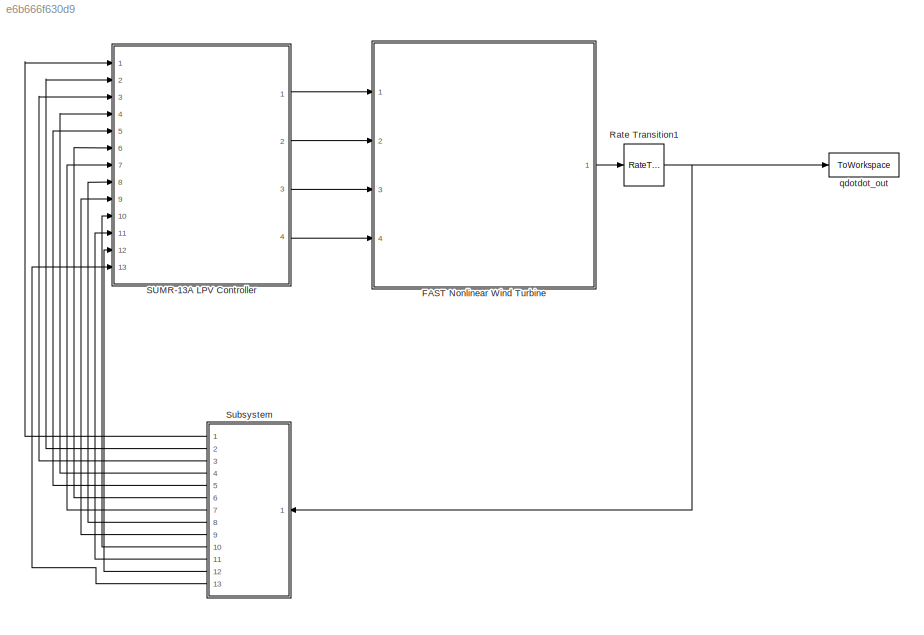
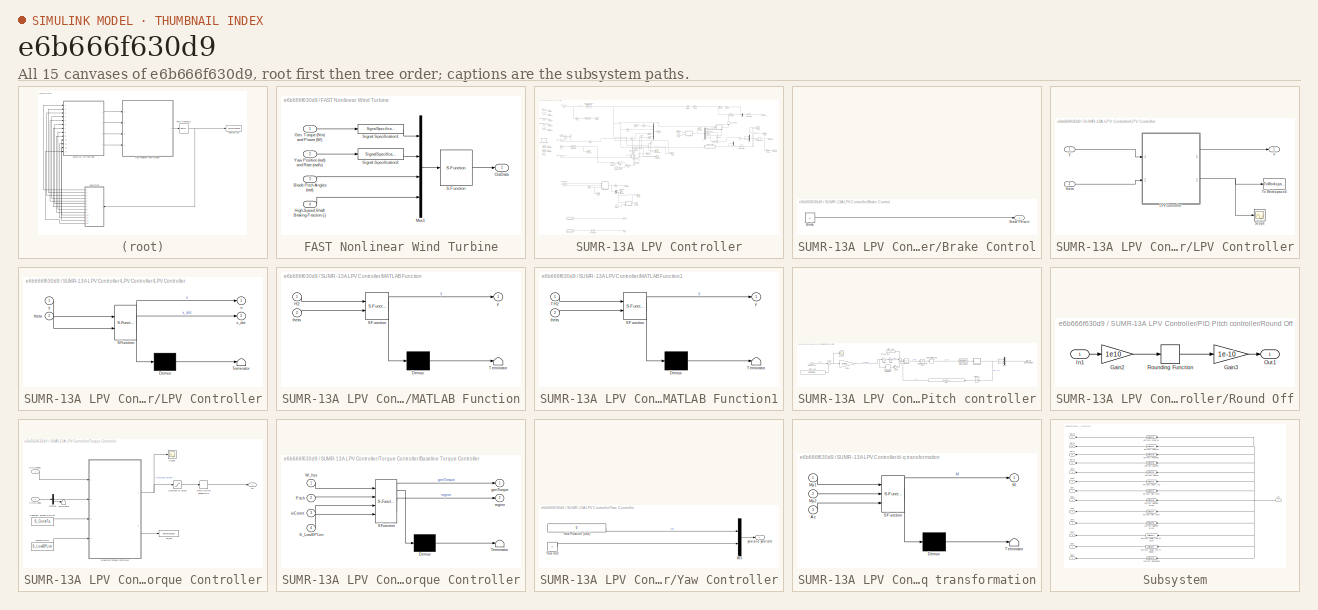
[diagram: thumbnail index - all 15 canvases of the model, root first then tree order]
MODEL slx_e6b666f630d9
KIND model
CONFIG AbsTol = auto
CONFIG EnableMultiTasking = on
CONFIG FixedStep = .0125
CONFIG MaxStep = auto
CONFIG MinStep = auto
CONFIG RelTol = 1e-3
CONFIG SampleTimeConstraint = Unconstrained
CONFIG Solver = ode4
CONFIG SolverName = ode4
CONFIG StartTime = 0.0
CONFIG StopTime = TMax
BLOCK [SubSystem] FAST Nonlinear Wind Turbine
  Ports = [4, 1]
  RequestExecContextInheritance = off
BLOCK [Inport] FAST Nonlinear Wind Turbine/Blade Pitch Angles (rad)
  IconDisplay = Port number
  Port = 3
BLOCK [Inport] FAST Nonlinear Wind Turbine/Gen. Torque (Nm) and Power (W)
  IconDisplay = Port number
BLOCK [Inport] FAST Nonlinear Wind Turbine/High-Speed Shaft Braking Fraction (-)
  IconDisplay = Port number
  Port = 4
BLOCK [Mux] FAST Nonlinear Wind Turbine/Mux1
  DisplayOption = bar
  Ports = [4, 1]
BLOCK [Outport] FAST Nonlinear Wind Turbine/OutData
  IconDisplay = Port number
BLOCK [S-Function] FAST Nonlinear Wind Turbine/S-Function
  EnableBusSupport = off
  FunctionName = FAST_SFunc
  Parameters = FAST_InputFileName, FA.TMax, 0
  Ports = [1, 1]
  SFcnIsStateOwnerBlock = off
  SFunctionDeploymentMode = off
BLOCK [SignalSpecification] FAST Nonlinear Wind Turbine/Signal Specification1
  Dimensions = 2
  OutDataTypeStr = double
  SignalType = real
BLOCK [SignalSpecification] FAST Nonlinear Wind Turbine/Signal Specification2
  Dimensions = 2
  OutDataTypeStr = double
  SignalType = real
BLOCK [Inport] FAST Nonlinear Wind Turbine/Yaw Position (rad) and Rate (rad//s)
  IconDisplay = Port number
  Port = 2
BLOCK [RateTransition] Rate Transition1
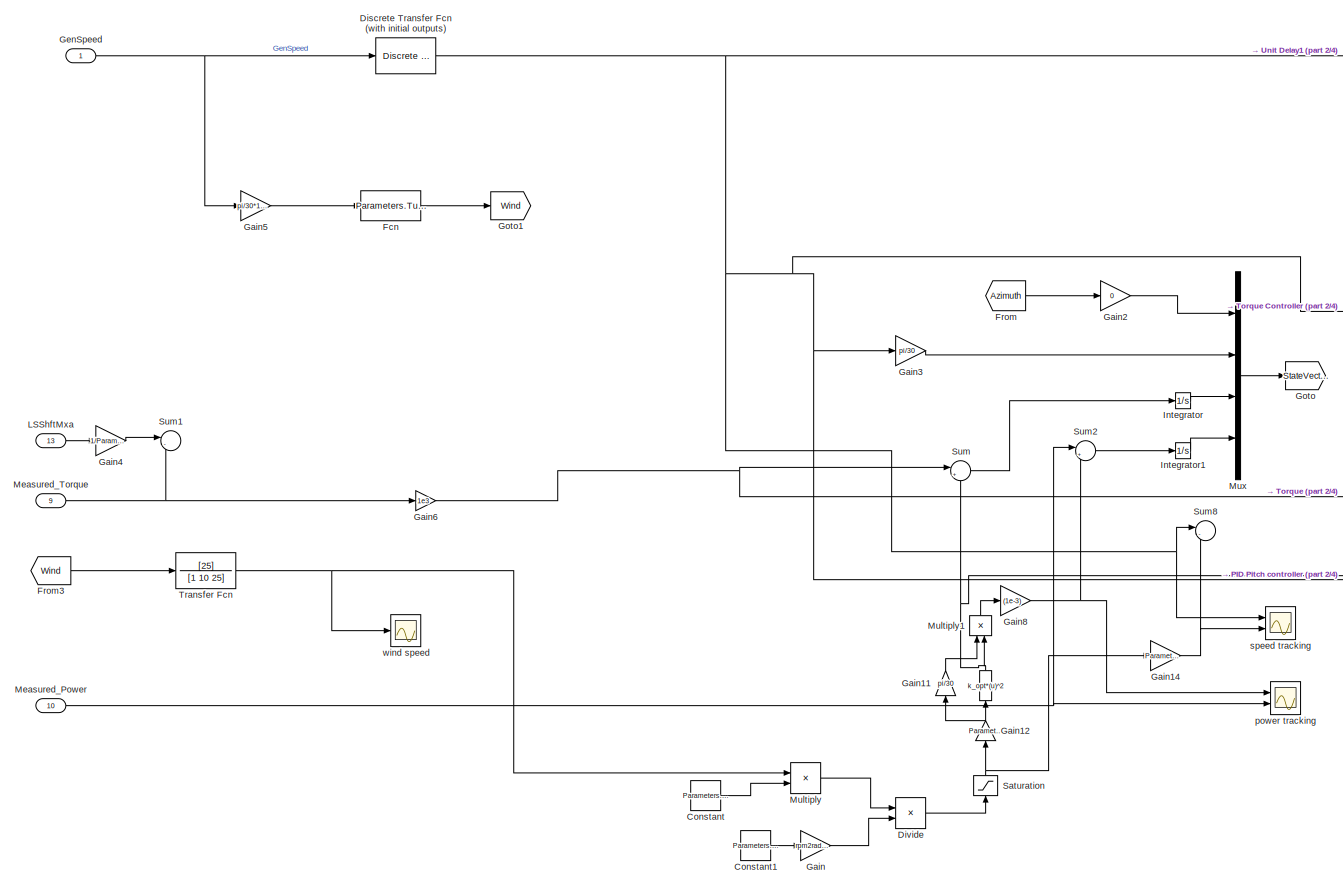
[diagram: SUMR-13A LPV Controller - part 1/4, top left region]
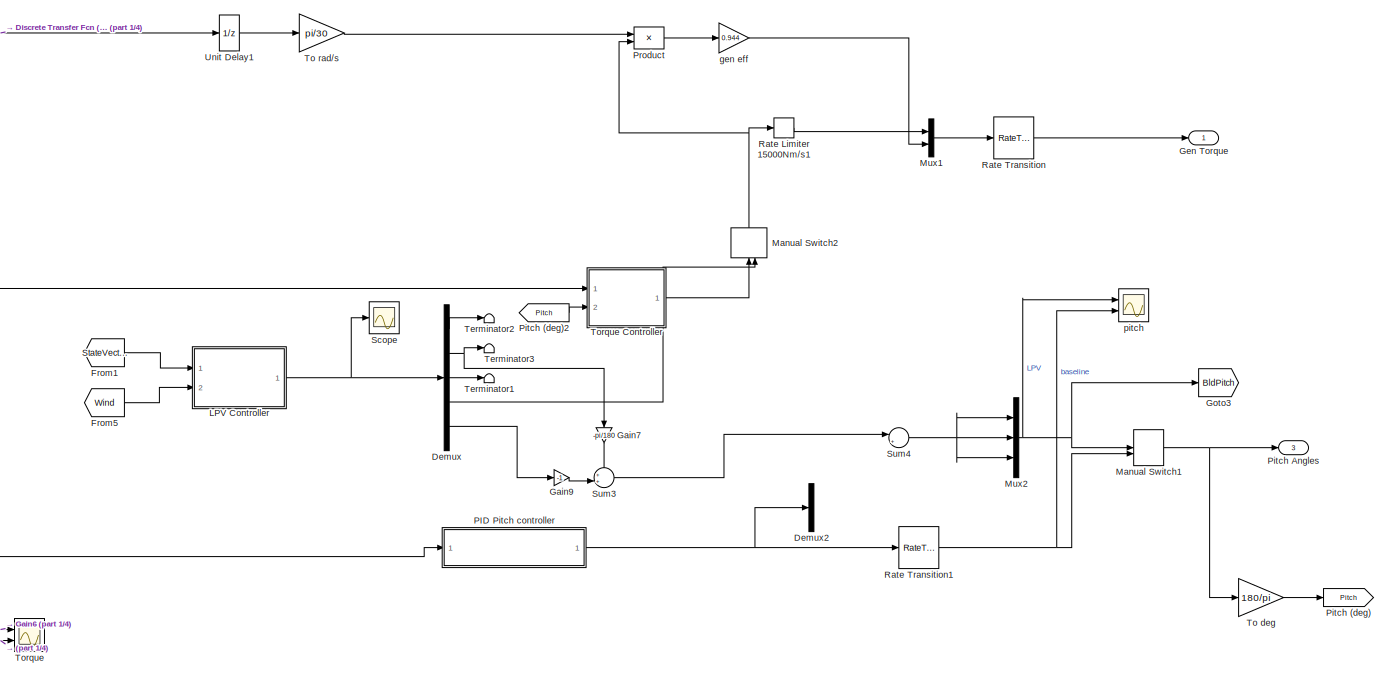
[diagram: SUMR-13A LPV Controller - part 2/4, top right region]
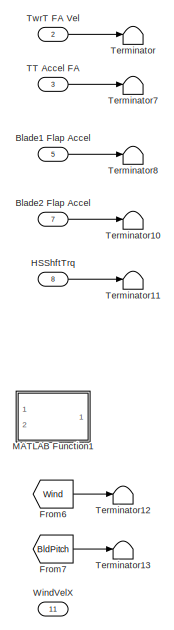
[diagram: SUMR-13A LPV Controller - part 3/4, top left region]
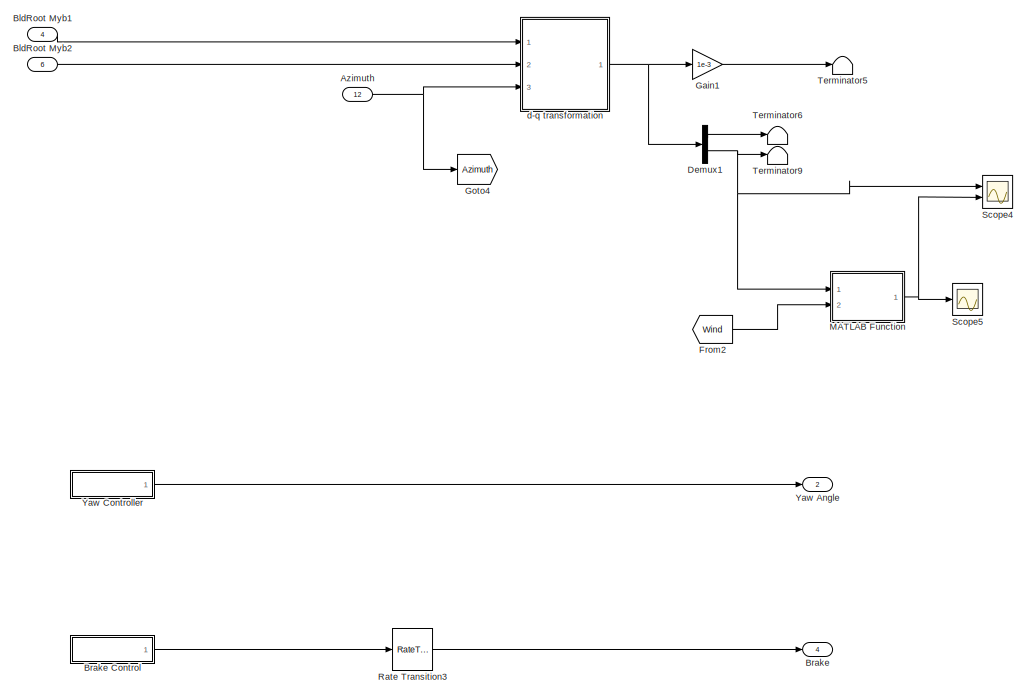
[diagram: SUMR-13A LPV Controller - part 4/4, bottom left region]
BLOCK [SubSystem] SUMR-13A LPV Controller
  Ports = [13, 4]
  RequestExecContextInheritance = off
BLOCK [Fcn] SUMR-13A LPV Controller/ 
  Expr = k_opt*(u)^2
BLOCK [Inport] SUMR-13A LPV Controller/Azimuth
  IconDisplay = Port number
  Port = 12
BLOCK [Inport] SUMR-13A LPV Controller/Blade1 Flap Accel
  IconDisplay = Port number
  Port = 5
BLOCK [Inport] SUMR-13A LPV Controller/Blade2 Flap Accel
  IconDisplay = Port number
  Port = 7
BLOCK [Inport] SUMR-13A LPV Controller/BldRoot Myb1
  IconDisplay = Port number
  Port = 4
BLOCK [Inport] SUMR-13A LPV Controller/BldRoot Myb2
  IconDisplay = Port number
  Port = 6
BLOCK [Outport] SUMR-13A LPV Controller/Brake
  IconDisplay = Port number
  Port = 4
BLOCK [SubSystem] SUMR-13A LPV Controller/Brake Control
  Ports = [0, 1]
  RequestExecContextInheritance = off
BLOCK [Constant] SUMR-13A LPV Controller/Brake Control/Brake
  SampleTime = -1
  Value = 0
BLOCK [Outport] SUMR-13A LPV Controller/Brake Control/Brake Percent
  IconDisplay = Port number
BLOCK [Constant] SUMR-13A LPV Controller/Constant
  SampleTime = FA.DT
  Value = Parameters.Turbine.la_max
BLOCK [Constant] SUMR-13A LPV Controller/Constant1
  Value = Parameters.Turbine.R+3
BLOCK [Demux] SUMR-13A LPV Controller/Demux
  DisplayOption = bar
  Outputs = 5
  Ports = [1, 5]
BLOCK [Demux] SUMR-13A LPV Controller/Demux1
  DisplayOption = bar
  Outputs = 2
  Ports = [1, 2]
BLOCK [Demux] SUMR-13A LPV Controller/Demux2
  DisplayOption = bar
  Outputs = 3
  Ports = [1, 3]
BLOCK [Reference] SUMR-13A LPV Controller/Discrete Transfer Fcn (with initial outputs)  REF=simulink_extras/Additional
Discrete/Discrete
Transfer Fcn
(with initial outputs)
  Ports = [1, 1]
  SourceBlock = simulink_extras/Additional\nDiscrete/Discrete\nTransfer Fcn\n(with initial outputs)
  SourceProductBaseCode = SL
  SourceProductName = Simulink
  SourceType = Discrete Transfer Function with Initial Outputs
BLOCK [Product] SUMR-13A LPV Controller/Divide
  InputSameDT = off
  Inputs = */
  OutDataTypeStr = Inherit: Inherit via internal rule
  Ports = [2, 1]
  RndMeth = Floor
  SaturateOnIntegerOverflow = off
BLOCK [Fcn] SUMR-13A LPV Controller/Fcn
  Expr = Parameters.Turbine.R*u(1)/Parameters.Turbine.la_max
BLOCK [From] SUMR-13A LPV Controller/From
  GotoTag = Azimuth
BLOCK [From] SUMR-13A LPV Controller/From1
  GotoTag = StateVector
BLOCK [From] SUMR-13A LPV Controller/From2
  GotoTag = Wind
BLOCK [From] SUMR-13A LPV Controller/From3
  GotoTag = Wind
BLOCK [From] SUMR-13A LPV Controller/From5
  GotoTag = Wind
BLOCK [From] SUMR-13A LPV Controller/From6
  GotoTag = Wind
BLOCK [From] SUMR-13A LPV Controller/From7
  GotoTag = BldPitch
BLOCK [Gain] SUMR-13A LPV Controller/Gain
  Gain = rpm2radps(1)
  OutDataTypeStr = Inherit: Inherit via internal rule
  ParamDataTypeStr = Inherit: Inherit via internal rule
  SaturateOnIntegerOverflow = off
BLOCK [Gain] SUMR-13A LPV Controller/Gain1
  Gain = 1e-3
  OutDataTypeStr = Inherit: Inherit via internal rule
  ParamDataTypeStr = Inherit: Inherit via internal rule
  SaturateOnIntegerOverflow = off
BLOCK [Gain] SUMR-13A LPV Controller/Gain11
  Gain = pi/30
  OutDataTypeStr = Inherit: Inherit via internal rule
  ParamDataTypeStr = Inherit: Inherit via internal rule
  SaturateOnIntegerOverflow = off
BLOCK [Gain] SUMR-13A LPV Controller/Gain12
  Gain = Parameters.Turbine.G
  OutDataTypeStr = Inherit: Inherit via internal rule
  ParamDataTypeStr = Inherit: Inherit via internal rule
  SaturateOnIntegerOverflow = off
BLOCK [Gain] SUMR-13A LPV Controller/Gain14
  Gain = Parameters.Turbine.G
  OutDataTypeStr = Inherit: Inherit via internal rule
  ParamDataTypeStr = Inherit: Inherit via internal rule
  SaturateOnIntegerOverflow = off
BLOCK [Gain] SUMR-13A LPV Controller/Gain2
  Gain = 0
  OutDataTypeStr = Inherit: Inherit via internal rule
  ParamDataTypeStr = Inherit: Inherit via internal rule
  SaturateOnIntegerOverflow = off
BLOCK [Gain] SUMR-13A LPV Controller/Gain3
  Gain = pi/30
  OutDataTypeStr = Inherit: Inherit via internal rule
  ParamDataTypeStr = Inherit: Inherit via internal rule
  SaturateOnIntegerOverflow = off
BLOCK [Gain] SUMR-13A LPV Controller/Gain4
  Gain = 1/Parameters.Turbine.G
  OutDataTypeStr = Inherit: Inherit via internal rule
  ParamDataTypeStr = Inherit: Inherit via internal rule
  SaturateOnIntegerOverflow = off
BLOCK [Gain] SUMR-13A LPV Controller/Gain5
  Gain = pi/30*1/Parameters.Turbine.G
  OutDataTypeStr = Inherit: Inherit via internal rule
  ParamDataTypeStr = Inherit: Inherit via internal rule
  SaturateOnIntegerOverflow = off
BLOCK [Gain] SUMR-13A LPV Controller/Gain6
  Gain = 1e3
  OutDataTypeStr = Inherit: Inherit via internal rule
  ParamDataTypeStr = Inherit: Inherit via internal rule
  SaturateOnIntegerOverflow = off
BLOCK [Gain] SUMR-13A LPV Controller/Gain7
  Gain = -pi/180
  OutDataTypeStr = Inherit: Inherit via internal rule
  ParamDataTypeStr = Inherit: Inherit via internal rule
  SaturateOnIntegerOverflow = off
BLOCK [Gain] SUMR-13A LPV Controller/Gain8
  Gain = (1e-3)
  OutDataTypeStr = Inherit: Inherit via internal rule
  ParamDataTypeStr = Inherit: Inherit via internal rule
  SaturateOnIntegerOverflow = off
BLOCK [Gain] SUMR-13A LPV Controller/Gain9
  Gain = -1
  OutDataTypeStr = Inherit: Inherit via internal rule
  ParamDataTypeStr = Inherit: Inherit via internal rule
  SaturateOnIntegerOverflow = off
BLOCK [Outport] SUMR-13A LPV Controller/Gen Torque
  IconDisplay = Port number
BLOCK [Inport] SUMR-13A LPV Controller/GenSpeed
  IconDisplay = Port number
BLOCK [Goto] SUMR-13A LPV Controller/Goto
  GotoTag = StateVector
BLOCK [Goto] SUMR-13A LPV Controller/Goto1
  GotoTag = Wind
BLOCK [Goto] SUMR-13A LPV Controller/Goto3
  GotoTag = BldPitch
BLOCK [Goto] SUMR-13A LPV Controller/Goto4
  GotoTag = Azimuth
BLOCK [Inport] SUMR-13A LPV Controller/HSShftTrq
  IconDisplay = Port number
  Port = 8
BLOCK [Integrator] SUMR-13A LPV Controller/Integrator
  Ports = [1, 1]
BLOCK [Integrator] SUMR-13A LPV Controller/Integrator1
  Ports = [1, 1]
BLOCK [SubSystem] SUMR-13A LPV Controller/LPV Controller
  MinAlgLoopOccurrences = on
  Ports = [2, 1]
  RequestExecContextInheritance = off
  TreatAsAtomicUnit = on
  TreatAsGroupedWhenPropagatingVariantConditions = off
BLOCK [SubSystem] SUMR-13A LPV Controller/LPV Controller/LPV Controller
  ErrorFcn = Stateflow.Translate.translate
  MinAlgLoopOccurrences = on
  PermitHierarchicalResolution = ExplicitOnly
  Ports = [2, 2]
  RequestExecContextInheritance = off
  SFBlockType = MATLAB Function
  SystemSampleTime = FA.DT
  TreatAsAtomicUnit = on
  TreatAsGroupedWhenPropagatingVariantConditions = off
BLOCK [Demux] SUMR-13A LPV Controller/LPV Controller/LPV Controller/ Demux 
  Outputs = 1
  Ports = [1, 1]
BLOCK [S-Function] SUMR-13A LPV Controller/LPV Controller/LPV Controller/ SFunction 
  EnableBusSupport = on
  FunctionName = sf_sfun
  PortCounts = [2 3]
  Ports = [2, 3]
  SFcnIsStateOwnerBlock = off
  SFunctionDeploymentMode = off
  Tag = Stateflow S-Function LPV_SUMR13 1
BLOCK [Terminator] SUMR-13A LPV Controller/LPV Controller/LPV Controller/ Terminator 
BLOCK [Inport] SUMR-13A LPV Controller/LPV Controller/LPV Controller/theta
  IconDisplay = Port number
  Port = 2
BLOCK [Outport] SUMR-13A LPV Controller/LPV Controller/LPV Controller/u
  IconDisplay = Port number
BLOCK [Outport] SUMR-13A LPV Controller/LPV Controller/LPV Controller/x_dot
  IconDisplay = Port number
  Port = 2
BLOCK [Inport] SUMR-13A LPV Controller/LPV Controller/LPV Controller/y
  IconDisplay = Port number
BLOCK [Scope] SUMR-13A LPV Controller/LPV Controller/Scope
  Floating = off
  NumInputPorts = 1
  Ports = [1]
  ScopeSpecificationString = Simulink.scopes.TimeScopeBlockCfg('CurrentConfiguration', extmgr.ConfigurationSet(extmgr.Configuration('Core','General UI',true),extmgr.Configuration('Core','Source UI',true),extmgr.Configuration('Sources','WiredSimulink',true,'DataLoggingVariableName','ScopeData1'),extmgr.Configuration('Visuals','Time Domain',true,'SerializedDisplays',{struct('MinYLimReal','-6191.96335','MaxYLimReal','10722.33325...<+1496ch>
BLOCK [ToWorkspace] SUMR-13A LPV Controller/LPV Controller/To Workspace4
  Decimation = 3
  FixptAsFi = on
  MaxDataPoints = inf
  Ports = [1]
  SampleTime = -1
  Save2DSignal = 3-D array (concatenate along third dimension)
  SaveFormat = Structure With Time
  VariableName = x_k1
BLOCK [Inport] SUMR-13A LPV Controller/LPV Controller/theta
  IconDisplay = Port number
  Port = 2
BLOCK [Outport] SUMR-13A LPV Controller/LPV Controller/u
  IconDisplay = Port number
BLOCK [Inport] SUMR-13A LPV Controller/LPV Controller/y
  IconDisplay = Port number
BLOCK [Inport] SUMR-13A LPV Controller/LSShftMxa
  IconDisplay = Port number
  Port = 13
BLOCK [SubSystem] SUMR-13A LPV Controller/MATLAB Function
  ErrorFcn = Stateflow.Translate.translate
  PermitHierarchicalResolution = ExplicitOnly
  Ports = [2, 1]
  RequestExecContextInheritance = off
  SFBlockType = MATLAB Function
  TreatAsAtomicUnit = on
BLOCK [Demux] SUMR-13A LPV Controller/MATLAB Function/ Demux 
  Outputs = 1
  Ports = [1, 1]
BLOCK [S-Function] SUMR-13A LPV Controller/MATLAB Function/ SFunction 
  EnableBusSupport = on
  FunctionName = sf_sfun
  PortCounts = [2 2]
  Ports = [2, 2]
  SFcnIsStateOwnerBlock = off
  SFunctionDeploymentMode = off
  Tag = Stateflow S-Function LPV_SUMR13 2
BLOCK [Terminator] SUMR-13A LPV Controller/MATLAB Function/ Terminator 
BLOCK [Inport] SUMR-13A LPV Controller/MATLAB Function/H2
  IconDisplay = Port number
BLOCK [Inport] SUMR-13A LPV Controller/MATLAB Function/theta
  IconDisplay = Port number
  Port = 2
BLOCK [Outport] SUMR-13A LPV Controller/MATLAB Function/y
  IconDisplay = Port number
BLOCK [SubSystem] SUMR-13A LPV Controller/MATLAB Function1
  ErrorFcn = Stateflow.Translate.translate
  PermitHierarchicalResolution = ExplicitOnly
  Ports = [2, 1]
  RequestExecContextInheritance = off
  SFBlockType = MATLAB Function
  TreatAsAtomicUnit = on
BLOCK [Demux] SUMR-13A LPV Controller/MATLAB Function1/ Demux 
  Outputs = 1
  Ports = [1, 1]
BLOCK [S-Function] SUMR-13A LPV Controller/MATLAB Function1/ SFunction 
  EnableBusSupport = on
  FunctionName = sf_sfun
  PortCounts = [2 2]
  Ports = [2, 2]
  SFcnIsStateOwnerBlock = off
  SFunctionDeploymentMode = off
  Tag = Stateflow S-Function LPV_SUMR13 4
BLOCK [Terminator] SUMR-13A LPV Controller/MATLAB Function1/ Terminator 
BLOCK [Inport] SUMR-13A LPV Controller/MATLAB Function1/TH2
  IconDisplay = Port number
BLOCK [Inport] SUMR-13A LPV Controller/MATLAB Function1/theta
  IconDisplay = Port number
  Port = 2
BLOCK [Outport] SUMR-13A LPV Controller/MATLAB Function1/y
  IconDisplay = Port number
BLOCK [ManualSwitch] SUMR-13A LPV Controller/Manual Switch1
BLOCK [ManualSwitch] SUMR-13A LPV Controller/Manual Switch2
  CurrentSetting = 0
BLOCK [Inport] SUMR-13A LPV Controller/Measured_Power
  IconDisplay = Port number
  Port = 10
BLOCK [Inport] SUMR-13A LPV Controller/Measured_Torque
  IconDisplay = Port number
  Port = 9
BLOCK [Product] SUMR-13A LPV Controller/Multiply
  InputSameDT = off
  OutDataTypeStr = Inherit: Inherit via internal rule
  Ports = [2, 1]
  RndMeth = Floor
  SaturateOnIntegerOverflow = off
BLOCK [Product] SUMR-13A LPV Controller/Multiply1
  InputSameDT = off
  OutDataTypeStr = Inherit: Inherit via internal rule
  Ports = [2, 1]
  RndMeth = Floor
  SaturateOnIntegerOverflow = off
BLOCK [Mux] SUMR-13A LPV Controller/Mux
  DisplayOption = bar
  Ports = [4, 1]
BLOCK [Mux] SUMR-13A LPV Controller/Mux1
  DisplayOption = bar
  Inputs = 2
  Ports = [2, 1]
BLOCK [Mux] SUMR-13A LPV Controller/Mux2
  DisplayOption = bar
  Inputs = 3
  Ports = [3, 1]
BLOCK [SubSystem] SUMR-13A LPV Controller/PID Pitch controller
  MinAlgLoopOccurrences = on
  Ports = [1, 1]
  RequestExecContextInheritance = off
BLOCK [Outport] SUMR-13A LPV Controller/PID Pitch controller/Blade Pitch (rad)
  IconDisplay = Port number
BLOCK [DiscreteIntegrator] SUMR-13A LPV Controller/PID Pitch controller/Discrete-Time Integrator
  ICPrevOutput = DiscIntNeverNeededParam
  ICPrevScaledInput = DiscIntNeverNeededParam
  InitialCondition = deg2rad(Parameters.Turbine.fine_pitch)/(PitchControlParams.Ki_0)/(1./(1.+deg2rad(Parameters.Turbine.fine_pitch)/PitchControlParams.theta_k))
  IntegratorMethod = Integration: Backward Euler
  LimitOutput = on
  LowerSaturationLimit = deg2rad(Parameters.Turbine.fine_pitch)/(PitchControlParams.Ki_0)/(1./(1.+deg2rad(Parameters.Turbine.fine_pitch)/PitchControlParams.theta_k))
  Ports = [1, 1]
  SampleTime = Control.DT
  UpperSaturationLimit = 5*1.570796/(PitchControlParams.Ki_0)/(1./(1.+1.570796/PitchControlParams.theta_k))
  gainval = 1
BLOCK [Fcn] SUMR-13A LPV Controller/PID Pitch controller/GK1
  Expr = 1./(1.+(u*180/pi-Parameters.Turbine.fine_pitch)/Parameters.Turbine.theta_k)
BLOCK [Gain] SUMR-13A LPV Controller/PID Pitch controller/Gain
  Gain = PitchControlParams.Kp_0
  OutDataTypeStr = Inherit: Inherit via internal rule
  ParamDataTypeStr = Inherit: Inherit via internal rule
  SaturateOnIntegerOverflow = off
BLOCK [Gain] SUMR-13A LPV Controller/PID Pitch controller/Gain1
  Gain = PitchControlParams.Ki_0
  OutDataTypeStr = Inherit: Inherit via internal rule
  ParamDataTypeStr = Inherit: Inherit via internal rule
  SaturateOnIntegerOverflow = off
BLOCK [Gain] SUMR-13A LPV Controller/PID Pitch controller/Gain2
  Gain = 0
  OutDataTypeStr = Inherit: Inherit via internal rule
  ParamDataTypeStr = Inherit: Inherit via internal rule
  SaturateOnIntegerOverflow = off
BLOCK [Gain] SUMR-13A LPV Controller/PID Pitch controller/Gain4
  Gain = rpm2radps(1)
  OutDataTypeStr = Inherit: Inherit via internal rule
  ParamDataTypeStr = Inherit: Inherit via internal rule
  SaturateOnIntegerOverflow = off
BLOCK [Mux] SUMR-13A LPV Controller/PID Pitch controller/Mux1
  DisplayOption = bar
  Inputs = 3
  Ports = [3, 1]
BLOCK [TransferFcn] SUMR-13A LPV Controller/PID Pitch controller/Pitch Actuator
  Denominator = Parameters.PitchActuator.TF_den
  Numerator = Parameters.PitchActuator.TF_num
BLOCK [Constant] SUMR-13A LPV Controller/PID Pitch controller/Pitch_op1
  SampleTime = Control.DT
  Value = 0
BLOCK [Constant] SUMR-13A LPV Controller/PID Pitch controller/Pitch_op2
  SampleTime = Control.DT
  Value = Parameters.Turbine.wg_rated
BLOCK [Product] SUMR-13A LPV Controller/PID Pitch controller/Product1
  InputSameDT = off
  OutDataTypeStr = Inherit: Inherit via internal rule
  Ports = [2, 1]
  SaturateOnIntegerOverflow = off
BLOCK [RateLimiter] SUMR-13A LPV Controller/PID Pitch controller/Rate Limiter 8deg//s
  FallingSlewLimit = -18*pi/180
  InitialCondition = deg2rad(0)
  RisingSlewLimit = 18*pi/180
  SampleTimeMode = inherited
BLOCK [Inport] SUMR-13A LPV Controller/PID Pitch controller/Rotor Speed
  IconDisplay = Port number
BLOCK [SubSystem] SUMR-13A LPV Controller/PID Pitch controller/Round Off
  Ports = [1, 1]
  RequestExecContextInheritance = off
BLOCK [Gain] SUMR-13A LPV Controller/PID Pitch controller/Round Off/Gain2
  Gain = 1e10
  OutDataTypeStr = Inherit: Inherit via internal rule
  ParamDataTypeStr = Inherit: Inherit via internal rule
  SaturateOnIntegerOverflow = off
BLOCK [Gain] SUMR-13A LPV Controller/PID Pitch controller/Round Off/Gain3
  Gain = 1e-10
  OutDataTypeStr = Inherit: Inherit via internal rule
  ParamDataTypeStr = Inherit: Inherit via internal rule
  SaturateOnIntegerOverflow = off
BLOCK [Inport] SUMR-13A LPV Controller/PID Pitch controller/Round Off/In1
  IconDisplay = Port number
BLOCK [Outport] SUMR-13A LPV Controller/PID Pitch controller/Round Off/Out1
  IconDisplay = Port number
BLOCK [Rounding] SUMR-13A LPV Controller/PID Pitch controller/Round Off/Rounding Function
  Operator = round
BLOCK [Saturate] SUMR-13A LPV Controller/PID Pitch controller/Saturation 0 to 90 deg
  InputPortMap = u0
  LowerLimit = deg2rad(Parameters.Turbine.fine_pitch)
  Ports = [1, 1]
  UpperLimit = 90*pi/180
BLOCK [Scope] SUMR-13A LPV Controller/PID Pitch controller/Scope1
  Floating = off
  NumInputPorts = 1
  Ports = [1]
  ScopeSpecificationString = Simulink.scopes.TimeScopeBlockCfg('CurrentConfiguration', extmgr.ConfigurationSet(extmgr.Configuration('Core','General UI',true),extmgr.Configuration('Core','Source UI',true),extmgr.Configuration('Sources','WiredSimulink',true,'DataLoggingVariableName','ScopeData2'),extmgr.Configuration('Visuals','Time Domain',true,'SerializedDisplays',{struct('MinYLimReal','-848.99604','MaxYLimReal','-522.22659',...<+1418ch>
BLOCK [Sum] SUMR-13A LPV Controller/PID Pitch controller/Sum1
  IconShape = round
  InputSameDT = off
  Inputs = +++
  OutDataTypeStr = Inherit: Inherit via internal rule
  Ports = [3, 1]
  SaturateOnIntegerOverflow = off
BLOCK [Sum] SUMR-13A LPV Controller/PID Pitch controller/Sum5
  IconShape = round
  Inputs = |+-
  Ports = [2, 1]
BLOCK [UnitDelay] SUMR-13A LPV Controller/PID Pitch controller/Unit Delay1
  InitialCondition = Parameters.Turbine.IC.Wg
  SampleTime = Control.DT
BLOCK [Goto] SUMR-13A LPV Controller/Pitch (deg)
  GotoTag = Pitch
BLOCK [From] SUMR-13A LPV Controller/Pitch (deg)2
  CloseFcn = tagdialog Close
  GotoTag = Pitch
BLOCK [Outport] SUMR-13A LPV Controller/Pitch Angles
  IconDisplay = Port number
  Port = 3
BLOCK [Product] SUMR-13A LPV Controller/Product
  InputSameDT = off
  OutDataTypeStr = Inherit: Inherit via internal rule
  Ports = [2, 1]
  SaturateOnIntegerOverflow = off
BLOCK [RateLimiter] SUMR-13A LPV Controller/Rate Limiter 15000Nm//s1
  FallingSlewLimit = -15000
  RisingSlewLimit = 15000
  SampleTimeMode = inherited
BLOCK [RateTransition] SUMR-13A LPV Controller/Rate Transition
  InitialCondition = Parameters.Turbine.IC.Tg
BLOCK [RateTransition] SUMR-13A LPV Controller/Rate Transition1
  InitialCondition = Parameters.Turbine.IC.Tg
BLOCK [RateTransition] SUMR-13A LPV Controller/Rate Transition3
BLOCK [Saturate] SUMR-13A LPV Controller/Saturation
  InputPortMap = u0
  LowerLimit = 0
  Ports = [1, 1]
  UpperLimit = Parameters.Turbine.wr_rated
BLOCK [Scope] SUMR-13A LPV Controller/Scope
  Floating = off
  NumInputPorts = 1
  Ports = [1]
  ScopeSpecificationString = Simulink.scopes.TimeScopeBlockCfg('CurrentConfiguration', extmgr.ConfigurationSet(extmgr.Configuration('Core','General UI',true),extmgr.Configuration('Core','Source UI',true),extmgr.Configuration('Sources','WiredSimulink',true,'DataLoggingVariableName','ScopeData1'),extmgr.Configuration('Visuals','Time Domain',true,'SerializedDisplays',{struct('MinYLimReal','-552.01323','MaxYLimReal','1618.73194',...<+1525ch>
BLOCK [Scope] SUMR-13A LPV Controller/Scope4
  Floating = off
  NumInputPorts = 2
  Ports = [2]
  ScopeSpecificationString = Simulink.scopes.TimeScopeBlockCfg('CurrentConfiguration', extmgr.ConfigurationSet(extmgr.Configuration('Core','General UI',true),extmgr.Configuration('Core','Source UI',true),extmgr.Configuration('Sources','WiredSimulink',true,'DataLoggingVariableName','ScopeData1'),extmgr.Configuration('Visuals','Time Domain',true,'SerializedDisplays',{struct('MinYLimReal','-108.10817','MaxYLimReal','139.93916','...<+1438ch>
BLOCK [Scope] SUMR-13A LPV Controller/Scope5
  Floating = off
  NumInputPorts = 1
  Ports = [1]
  ScopeSpecificationString = Simulink.scopes.TimeScopeBlockCfg('CurrentConfiguration', extmgr.ConfigurationSet(extmgr.Configuration('Core','General UI',true),extmgr.Configuration('Core','Source UI',true),extmgr.Configuration('Sources','WiredSimulink',true,'DataLoggingVariableName','ScopeData2'),extmgr.Configuration('Visuals','Time Domain',true,'SerializedDisplays',{struct('MinYLimReal','-105.59628','MaxYLimReal','117.33218','...<+1427ch>
BLOCK [Sum] SUMR-13A LPV Controller/Sum
  IconShape = round
  InputSameDT = off
  Inputs = |+-
  OutDataTypeStr = Inherit: Inherit via internal rule
  Ports = [2, 1]
  SaturateOnIntegerOverflow = off
BLOCK [Sum] SUMR-13A LPV Controller/Sum1
  IconShape = round
  InputSameDT = off
  Inputs = |-+
  OutDataTypeStr = Inherit: Inherit via internal rule
  Ports = [2, 1]
  SaturateOnIntegerOverflow = off
BLOCK [Sum] SUMR-13A LPV Controller/Sum2
  IconShape = round
  InputSameDT = off
  Inputs = |+-
  OutDataTypeStr = Inherit: Inherit via internal rule
  Ports = [2, 1]
  SaturateOnIntegerOverflow = off
BLOCK [Sum] SUMR-13A LPV Controller/Sum3
  IconShape = round
  InputSameDT = off
  Inputs = ++|
  OutDataTypeStr = Inherit: Inherit via internal rule
  Ports = [2, 1]
  SaturateOnIntegerOverflow = off
BLOCK [Sum] SUMR-13A LPV Controller/Sum4
  IconShape = round
  InputSameDT = off
  Inputs = |++
  OutDataTypeStr = Inherit: Inherit via internal rule
  Ports = [2, 1]
  SaturateOnIntegerOverflow = off
BLOCK [Sum] SUMR-13A LPV Controller/Sum8
  IconShape = round
  InputSameDT = off
  Inputs = |-+
  OutDataTypeStr = Inherit: Inherit via internal rule
  Ports = [2, 1]
  SaturateOnIntegerOverflow = off
BLOCK [Inport] SUMR-13A LPV Controller/TT Accel FA
  IconDisplay = Port number
  Port = 3
BLOCK [Terminator] SUMR-13A LPV Controller/Terminator
BLOCK [Terminator] SUMR-13A LPV Controller/Terminator1
BLOCK [Terminator] SUMR-13A LPV Controller/Terminator10
BLOCK [Terminator] SUMR-13A LPV Controller/Terminator11
BLOCK [Terminator] SUMR-13A LPV Controller/Terminator12
BLOCK [Terminator] SUMR-13A LPV Controller/Terminator13
BLOCK [Terminator] SUMR-13A LPV Controller/Terminator2
BLOCK [Terminator] SUMR-13A LPV Controller/Terminator3
BLOCK [Terminator] SUMR-13A LPV Controller/Terminator5
BLOCK [Terminator] SUMR-13A LPV Controller/Terminator6
BLOCK [Terminator] SUMR-13A LPV Controller/Terminator7
BLOCK [Terminator] SUMR-13A LPV Controller/Terminator8
BLOCK [Terminator] SUMR-13A LPV Controller/Terminator9
BLOCK [Gain] SUMR-13A LPV Controller/To deg
  Gain = 180/pi
  OutDataTypeStr = Inherit: Inherit via internal rule
  ParamDataTypeStr = Inherit: Inherit via internal rule
  SaturateOnIntegerOverflow = off
BLOCK [Gain] SUMR-13A LPV Controller/To rad//s
  Gain = pi/30
  OutDataTypeStr = Inherit: Inherit via internal rule
  ParamDataTypeStr = Inherit: Inherit via internal rule
  SaturateOnIntegerOverflow = off
BLOCK [Scope] SUMR-13A LPV Controller/Torque
  Floating = off
  NumInputPorts = 2
  Ports = [2]
  ScopeSpecificationString = Simulink.scopes.TimeScopeBlockCfg('CurrentConfiguration', extmgr.ConfigurationSet(extmgr.Configuration('Core','General UI',true),extmgr.Configuration('Core','Source UI',true),extmgr.Configuration('Sources','WiredSimulink',true,'DataLoggingVariableName','ScopeData1'),extmgr.Configuration('Visuals','Time Domain',true,'SerializedDisplays',{struct('MinYLimReal','-19677.42704','MaxYLimReal','177095.760...<+1439ch>
BLOCK [SubSystem] SUMR-13A LPV Controller/Torque Controller
  Ports = [2, 1]
  RequestExecContextInheritance = off
BLOCK [SubSystem] SUMR-13A LPV Controller/Torque Controller/Baseline Torque Controller
  ErrorFcn = Stateflow.Translate.translate
  PermitHierarchicalResolution = ExplicitOnly
  Ports = [4, 2]
  RequestExecContextInheritance = off
  SFBlockType = MATLAB Function
  TreatAsAtomicUnit = on
BLOCK [Demux] SUMR-13A LPV Controller/Torque Controller/Baseline Torque Controller/ Demux 
  Outputs = 1
  Ports = [1, 1]
BLOCK [S-Function] SUMR-13A LPV Controller/Torque Controller/Baseline Torque Controller/ SFunction 
  EnableBusSupport = on
  FunctionName = sf_sfun
  Parameters = TorqueControlParams
  PortCounts = [4 3]
  Ports = [4, 3]
  SFcnIsStateOwnerBlock = off
  SFunctionDeploymentMode = off
  Tag = Stateflow S-Function LPV_SUMR13 3
BLOCK [Terminator] SUMR-13A LPV Controller/Torque Controller/Baseline Torque Controller/ Terminator 
BLOCK [Inport] SUMR-13A LPV Controller/Torque Controller/Baseline Torque Controller/Pitch
  IconDisplay = Port number
  Port = 2
BLOCK [Inport] SUMR-13A LPV Controller/Torque Controller/Baseline Torque Controller/S_LowBPLim
  IconDisplay = Port number
  Port = 4
BLOCK [Inport] SUMR-13A LPV Controller/Torque Controller/Baseline Torque Controller/W_hss
  IconDisplay = Port number
BLOCK [Outport] SUMR-13A LPV Controller/Torque Controller/Baseline Torque Controller/genTorque
  IconDisplay = Port number
BLOCK [Inport] SUMR-13A LPV Controller/Torque Controller/Baseline Torque Controller/isConst
  IconDisplay = Port number
  Port = 3
BLOCK [Outport] SUMR-13A LPV Controller/Torque Controller/Baseline Torque Controller/region
  IconDisplay = Port number
  Port = 2
BLOCK [Constant] SUMR-13A LPV Controller/Torque Controller/Constant Torque Switch
  SampleTime = Control.DT
  Value = S_ConstTq
BLOCK [Demux] SUMR-13A LPV Controller/Torque Controller/Demux
  DisplayOption = bar
  Outputs = [1, 2]
  Ports = [1, 2]
BLOCK [Inport] SUMR-13A LPV Controller/Torque Controller/HSSspeed
  IconDisplay = Port number
BLOCK [Constant] SUMR-13A LPV Controller/Torque Controller/LowBPLim1
  SampleTime = Control.DT
  Value = S_LowBPLim
BLOCK [Inport] SUMR-13A LPV Controller/Torque Controller/Pitch (deg)
  IconDisplay = Port number
  Port = 2
BLOCK [RateLimiter] SUMR-13A LPV Controller/Torque Controller/Rate Limiter 15000Nm//s
  FallingSlewLimit = -15000
  RisingSlewLimit = 15000
  SampleTimeMode = inherited
BLOCK [Saturate] SUMR-13A LPV Controller/Torque Controller/Saturate to Tg_op
  InputPortMap = u0
  LowerLimit = 0
  Ports = [1, 1]
  UpperLimit = TorqueControlParams.T_rated
BLOCK [Scope] SUMR-13A LPV Controller/Torque Controller/Scope
  Floating = off
  NumInputPorts = 1
  Ports = [1]
  ScopeSpecificationString = C++SS(StrPVP('SaveName','ScopeData1'),StrPVP('LimitDataPoints','on'),StrPVP('DataFormat','Array'),StrPVP('Decimation','1'),StrPVP('BlockParamSampleInput','off'))
BLOCK [Terminator] SUMR-13A LPV Controller/Torque Controller/Terminator
BLOCK [Outport] SUMR-13A LPV Controller/Torque Controller/Tg
  IconDisplay = Port number
BLOCK [ToWorkspace] SUMR-13A LPV Controller/Torque Controller/Tg_out
  MaxDataPoints = Inf
  Ports = [1]
  SampleTime = -1
  VariableName = Out_Region1
BLOCK [TransferFcn] SUMR-13A LPV Controller/Transfer Fcn
  Denominator = [1 10 25]
  Numerator = [25]
BLOCK [Inport] SUMR-13A LPV Controller/TwrT FA Vel
  IconDisplay = Port number
  Port = 2
BLOCK [UnitDelay] SUMR-13A LPV Controller/Unit Delay1
  InitialCondition = Parameters.Turbine.IC.Wg
  SampleTime = FA.DT
BLOCK [Inport] SUMR-13A LPV Controller/WindVelX
  IconDisplay = Port number
  Port = 11
BLOCK [Outport] SUMR-13A LPV Controller/Yaw Angle
  IconDisplay = Port number
  Port = 2
BLOCK [SubSystem] SUMR-13A LPV Controller/Yaw Controller
  Ports = [0, 1]
  RequestExecContextInheritance = off
BLOCK [Mux] SUMR-13A LPV Controller/Yaw Controller/Mux
  DisplayOption = bar
  Inputs = 2
  Ports = [2, 1]
BLOCK [Constant] SUMR-13A LPV Controller/Yaw Controller/Yaw Position (rad)
  SampleTime = -1
  Value = 0
BLOCK [Constant] SUMR-13A LPV Controller/Yaw Controller/Yaw rate
  SampleTime = -1
  Value = 0
BLOCK [Outport] SUMR-13A LPV Controller/Yaw Controller/yaw and yaw rate
  IconDisplay = Port number
BLOCK [SubSystem] SUMR-13A LPV Controller/d-q transformation
  ErrorFcn = Stateflow.Translate.translate
  PermitHierarchicalResolution = ExplicitOnly
  Ports = [3, 1]
  RequestExecContextInheritance = off
  SFBlockType = MATLAB Function
  TreatAsAtomicUnit = on
BLOCK [Demux] SUMR-13A LPV Controller/d-q transformation/ Demux 
  Outputs = 1
  Ports = [1, 1]
BLOCK [S-Function] SUMR-13A LPV Controller/d-q transformation/ SFunction 
  EnableBusSupport = on
  FunctionName = sf_sfun
  PortCounts = [3 2]
  Ports = [3, 2]
  SFcnIsStateOwnerBlock = off
  SFunctionDeploymentMode = off
  Tag = Stateflow S-Function LPV_SUMR13 5
BLOCK [Terminator] SUMR-13A LPV Controller/d-q transformation/ Terminator 
BLOCK [Inport] SUMR-13A LPV Controller/d-q transformation/Az
  IconDisplay = Port number
  Port = 3
BLOCK [Outport] SUMR-13A LPV Controller/d-q transformation/M
  IconDisplay = Port number
BLOCK [Inport] SUMR-13A LPV Controller/d-q transformation/My1
  IconDisplay = Port number
BLOCK [Inport] SUMR-13A LPV Controller/d-q transformation/My2
  IconDisplay = Port number
  Port = 2
BLOCK [Gain] SUMR-13A LPV Controller/gen eff
  Gain = 0.944
  OutDataTypeStr = Inherit: Inherit via internal rule
  ParamDataTypeStr = Inherit: Inherit via internal rule
  SaturateOnIntegerOverflow = off
BLOCK [Scope] SUMR-13A LPV Controller/pitch
  Floating = off
  NumInputPorts = 2
  Ports = [2]
  ScopeSpecificationString = Simulink.scopes.TimeScopeBlockCfg('CurrentConfiguration', extmgr.ConfigurationSet(extmgr.Configuration('Core','General UI',true),extmgr.Configuration('Core','Source UI',true),extmgr.Configuration('Sources','WiredSimulink',true,'DataLoggingVariableName','ScopeData2'),extmgr.Configuration('Visuals','Time Domain',true,'SerializedDisplays',{struct('MinYLimReal','-0.16596','MaxYLimReal','1.49361','YLab...<+1475ch>
BLOCK [Scope] SUMR-13A LPV Controller/power tracking
  Floating = off
  NumInputPorts = 2
  Ports = [2]
  ScopeSpecificationString = Simulink.scopes.TimeScopeBlockCfg('CurrentConfiguration', extmgr.ConfigurationSet(extmgr.Configuration('Core','General UI',true),extmgr.Configuration('Core','Source UI',true),extmgr.Configuration('Sources','WiredSimulink',true,'DataLoggingVariableName','ScopeData1'),extmgr.Configuration('Visuals','Time Domain',true,'SerializedDisplays',{struct('MinYLimReal','-16669.36011','MaxYLimReal','47266.9558...<+1467ch>
BLOCK [Scope] SUMR-13A LPV Controller/speed tracking
  Floating = off
  NumInputPorts = 2
  Ports = [2]
  ScopeSpecificationString = Simulink.scopes.TimeScopeBlockCfg('CurrentConfiguration', extmgr.ConfigurationSet(extmgr.Configuration('Core','General UI',true),extmgr.Configuration('Core','Source UI',true),extmgr.Configuration('Sources','WiredSimulink',true,'DataLoggingVariableName','ScopeData1'),extmgr.Configuration('Visuals','Time Domain',true,'SerializedDisplays',{struct('MinYLimReal','-291.75372','MaxYLimReal','2625.78346',...<+1486ch>
BLOCK [Scope] SUMR-13A LPV Controller/wind speed
  Floating = off
  NumInputPorts = 1
  Ports = [1]
  ScopeSpecificationString = Simulink.scopes.TimeScopeBlockCfg('CurrentConfiguration', extmgr.ConfigurationSet(extmgr.Configuration('Core','General UI',true),extmgr.Configuration('Core','Source UI',true),extmgr.Configuration('Sources','WiredSimulink',true,'DataLoggingVariableName','ScopeData5'),extmgr.Configuration('Visuals','Time Domain',true,'SerializedDisplays',{struct('MinYLimReal','-0.85021','MaxYLimReal','7.65188','YLab...<+1410ch>
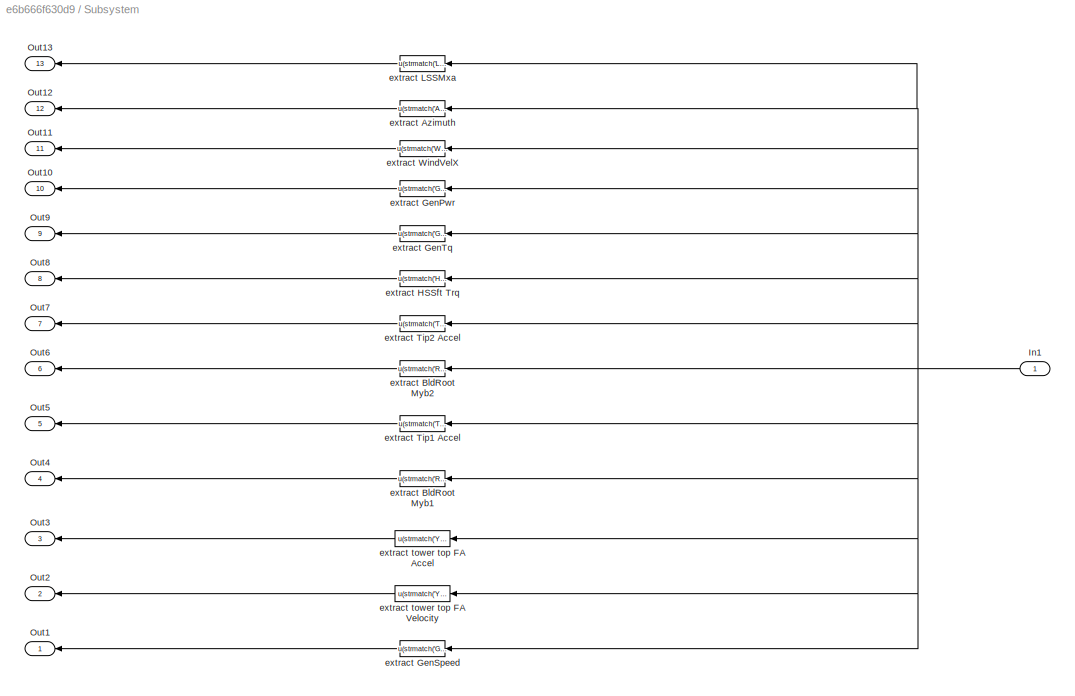
BLOCK [SubSystem] Subsystem
  Ports = [1, 13]
  RequestExecContextInheritance = off
BLOCK [Inport] Subsystem/In1
  IconDisplay = Port number
BLOCK [Outport] Subsystem/Out1
  IconDisplay = Port number
BLOCK [Outport] Subsystem/Out10
  IconDisplay = Port number
  Port = 10
BLOCK [Outport] Subsystem/Out11
  IconDisplay = Port number
  Port = 11
BLOCK [Outport] Subsystem/Out12
  IconDisplay = Port number
  Port = 12
BLOCK [Outport] Subsystem/Out13
  IconDisplay = Port number
  Port = 13
BLOCK [Outport] Subsystem/Out2
  IconDisplay = Port number
  Port = 2
BLOCK [Outport] Subsystem/Out3
  IconDisplay = Port number
  Port = 3
BLOCK [Outport] Subsystem/Out4
  IconDisplay = Port number
  Port = 4
BLOCK [Outport] Subsystem/Out5
  IconDisplay = Port number
  Port = 5
BLOCK [Outport] Subsystem/Out6
  IconDisplay = Port number
  Port = 6
BLOCK [Outport] Subsystem/Out7
  IconDisplay = Port number
  Port = 7
BLOCK [Outport] Subsystem/Out8
  IconDisplay = Port number
  Port = 8
BLOCK [Outport] Subsystem/Out9
  IconDisplay = Port number
  Port = 9
BLOCK [Fcn] Subsystem/extract Azimuth
  Expr = u(strmatch('Azimuth',OutList))
BLOCK [Fcn] Subsystem/extract BldRoot Myb1
  Expr = u(strmatch('RootMyb1',OutList))
BLOCK [Fcn] Subsystem/extract BldRoot Myb2
  Expr = u(strmatch('RootMyb2',OutList))
BLOCK [Fcn] Subsystem/extract GenPwr
  Expr = u(strmatch('GenPwr',OutList))
BLOCK [Fcn] Subsystem/extract GenSpeed
  Expr = u(strmatch('GenSpeed',OutList))
BLOCK [Fcn] Subsystem/extract GenTq
  Expr = u(strmatch('GenTq',OutList))
BLOCK [Fcn] Subsystem/extract HSSft Trq
  Expr = u(strmatch('HSShftTq',OutList))
BLOCK [Fcn] Subsystem/extract LSSMxa
  Expr = u(strmatch('LSShftMxa',OutList))
BLOCK [Fcn] Subsystem/extract Tip1 Accel
  Expr = u(strmatch('TipALxb1',OutList))
BLOCK [Fcn] Subsystem/extract Tip2 Accel
  Expr = u(strmatch('TipALxb1',OutList))
BLOCK [Fcn] Subsystem/extract WindVelX
  Expr = u(strmatch('Wind1VelX',OutList))
BLOCK [Fcn] Subsystem/extract tower top FA Accel
  Expr = u(strmatch('YawBrRAyp',OutList))
BLOCK [Fcn] Subsystem/extract tower top FA Velocity
  Expr = u(strmatch('YawBrRVyp',OutList))
BLOCK [ToWorkspace] qdotdot_out
  MaxDataPoints = inf
  Ports = [1]
  SampleTime = -1
  SaveFormat = Structure With Time
  VariableName = OutData
ANNOTATION SUMR-13A LPV Controller/PID Pitch controller: fine pitch offset?
LINE FAST Nonlinear Wind Turbine/Blade Pitch Angles (rad):1 -> FAST Nonlinear Wind Turbine/Mux1:3
LINE FAST Nonlinear Wind Turbine/Gen. Torque (Nm) and Power (W):1 -> FAST Nonlinear Wind Turbine/Signal Specification1:1
LINE FAST Nonlinear Wind Turbine/High-Speed Shaft Braking Fraction (-):1 -> FAST Nonlinear Wind Turbine/Mux1:4
LINE FAST Nonlinear Wind Turbine/Mux1:1 -> FAST Nonlinear Wind Turbine/S-Function:1
LINE FAST Nonlinear Wind Turbine/S-Function:1 -> FAST Nonlinear Wind Turbine/OutData:1
LINE FAST Nonlinear Wind Turbine/Signal Specification1:1 -> FAST Nonlinear Wind Turbine/Mux1:1
LINE FAST Nonlinear Wind Turbine/Signal Specification2:1 -> FAST Nonlinear Wind Turbine/Mux1:2
LINE FAST Nonlinear Wind Turbine/Yaw Position (rad) and Rate (rad//s):1 -> FAST Nonlinear Wind Turbine/Signal Specification2:1
LINE FAST Nonlinear Wind Turbine:1 -> Rate Transition1:1
NET Rate Transition1:1 -> Subsystem:1, qdotdot_out:1
NET SUMR-13A LPV Controller/ :1 -> SUMR-13A LPV Controller/Multiply1:2, SUMR-13A LPV Controller/Sum:2, SUMR-13A LPV Controller/Torque:2
NET SUMR-13A LPV Controller/Azimuth:1 -> SUMR-13A LPV Controller/Goto4:1, SUMR-13A LPV Controller/d-q transformation:3
LINE SUMR-13A LPV Controller/Blade1 Flap Accel:1 -> SUMR-13A LPV Controller/Terminator8:1
LINE SUMR-13A LPV Controller/Blade2 Flap Accel:1 -> SUMR-13A LPV Controller/Terminator10:1
LINE SUMR-13A LPV Controller/BldRoot Myb1:1 -> SUMR-13A LPV Controller/d-q transformation:1
LINE SUMR-13A LPV Controller/BldRoot Myb2:1 -> SUMR-13A LPV Controller/d-q transformation:2
LINE SUMR-13A LPV Controller/Brake Control/Brake:1 -> SUMR-13A LPV Controller/Brake Control/Brake Percent:1
LINE SUMR-13A LPV Controller/Brake Control:1 -> SUMR-13A LPV Controller/Rate Transition3:1
LINE SUMR-13A LPV Controller/Constant1:1 -> SUMR-13A LPV Controller/Gain:1
LINE SUMR-13A LPV Controller/Constant:1 -> SUMR-13A LPV Controller/Multiply:2
LINE SUMR-13A LPV Controller/Demux1:1 -> SUMR-13A LPV Controller/Terminator6:1
NET SUMR-13A LPV Controller/Demux1:2 -> SUMR-13A LPV Controller/MATLAB Function:1, SUMR-13A LPV Controller/Scope4:1, SUMR-13A LPV Controller/Terminator9:1
LINE SUMR-13A LPV Controller/Demux:1 -> SUMR-13A LPV Controller/Terminator2:1
NET SUMR-13A LPV Controller/Demux:2 -> SUMR-13A LPV Controller/Gain7:1, SUMR-13A LPV Controller/Terminator3:1
LINE SUMR-13A LPV Controller/Demux:3 -> SUMR-13A LPV Controller/Terminator1:1
LINE SUMR-13A LPV Controller/Demux:4 -> SUMR-13A LPV Controller/Manual Switch2:2
LINE SUMR-13A LPV Controller/Demux:5 -> SUMR-13A LPV Controller/Gain9:1
NET SUMR-13A LPV Controller/Discrete Transfer Fcn (with initial outputs):1 -> SUMR-13A LPV Controller/Gain3:1, SUMR-13A LPV Controller/PID Pitch controller:1, SUMR-13A LPV Controller/Sum8:1, SUMR-13A LPV Controller/Torque Controller:1, SUMR-13A LPV Controller/Unit Delay1:1, SUMR-13A LPV Controller/speed tracking:1
LINE SUMR-13A LPV Controller/Divide:1 -> SUMR-13A LPV Controller/Saturation:1
LINE SUMR-13A LPV Controller/Fcn:1 -> SUMR-13A LPV Controller/Goto1:1
LINE SUMR-13A LPV Controller/From1:1 -> SUMR-13A LPV Controller/LPV Controller:1
LINE SUMR-13A LPV Controller/From2:1 -> SUMR-13A LPV Controller/MATLAB Function:2
LINE SUMR-13A LPV Controller/From3:1 -> SUMR-13A LPV Controller/Transfer Fcn:1
LINE SUMR-13A LPV Controller/From5:1 -> SUMR-13A LPV Controller/LPV Controller:2
LINE SUMR-13A LPV Controller/From6:1 -> SUMR-13A LPV Controller/Terminator12:1
LINE SUMR-13A LPV Controller/From7:1 -> SUMR-13A LPV Controller/Terminator13:1
LINE SUMR-13A LPV Controller/From:1 -> SUMR-13A LPV Controller/Gain2:1
LINE SUMR-13A LPV Controller/Gain11:1 -> SUMR-13A LPV Controller/Multiply1:1
NET SUMR-13A LPV Controller/Gain12:1 -> SUMR-13A LPV Controller/ :1, SUMR-13A LPV Controller/Gain11:1
NET SUMR-13A LPV Controller/Gain14:1 -> SUMR-13A LPV Controller/Sum8:2, SUMR-13A LPV Controller/speed tracking:2
LINE SUMR-13A LPV Controller/Gain1:1 -> SUMR-13A LPV Controller/Terminator5:1
LINE SUMR-13A LPV Controller/Gain2:1 -> SUMR-13A LPV Controller/Mux:1
LINE SUMR-13A LPV Controller/Gain3:1 -> SUMR-13A LPV Controller/Mux:2
LINE SUMR-13A LPV Controller/Gain4:1 -> SUMR-13A LPV Controller/Sum1:1
LINE SUMR-13A LPV Controller/Gain5:1 -> SUMR-13A LPV Controller/Fcn:1
NET SUMR-13A LPV Controller/Gain6:1 -> SUMR-13A LPV Controller/Sum:1, SUMR-13A LPV Controller/Torque:1
LINE SUMR-13A LPV Controller/Gain7:1 -> SUMR-13A LPV Controller/Sum3:1
NET SUMR-13A LPV Controller/Gain8:1 -> SUMR-13A LPV Controller/Sum2:2, SUMR-13A LPV Controller/power tracking:1
LINE SUMR-13A LPV Controller/Gain9:1 -> SUMR-13A LPV Controller/Sum3:2
LINE SUMR-13A LPV Controller/Gain:1 -> SUMR-13A LPV Controller/Divide:2
NET SUMR-13A LPV Controller/GenSpeed:1 -> SUMR-13A LPV Controller/Discrete Transfer Fcn (with initial outputs):1, SUMR-13A LPV Controller/Gain5:1
LINE SUMR-13A LPV Controller/HSShftTrq:1 -> SUMR-13A LPV Controller/Terminator11:1
LINE SUMR-13A LPV Controller/Integrator1:1 -> SUMR-13A LPV Controller/Mux:4
LINE SUMR-13A LPV Controller/Integrator:1 -> SUMR-13A LPV Controller/Mux:3
LINE SUMR-13A LPV Controller/LPV Controller/LPV Controller:1 -> SUMR-13A LPV Controller/LPV Controller/u:1
NET SUMR-13A LPV Controller/LPV Controller/LPV Controller:2 -> SUMR-13A LPV Controller/LPV Controller/Scope:1, SUMR-13A LPV Controller/LPV Controller/To Workspace4:1
LINE SUMR-13A LPV Controller/LPV Controller/theta:1 -> SUMR-13A LPV Controller/LPV Controller/LPV Controller:2
LINE SUMR-13A LPV Controller/LPV Controller/y:1 -> SUMR-13A LPV Controller/LPV Controller/LPV Controller:1
NET SUMR-13A LPV Controller/LPV Controller:1 -> SUMR-13A LPV Controller/Demux:1, SUMR-13A LPV Controller/Scope:1
LINE SUMR-13A LPV Controller/LSShftMxa:1 -> SUMR-13A LPV Controller/Gain4:1
NET SUMR-13A LPV Controller/MATLAB Function:1 -> SUMR-13A LPV Controller/Scope4:2, SUMR-13A LPV Controller/Scope5:1
NET SUMR-13A LPV Controller/Manual Switch1:1 -> SUMR-13A LPV Controller/Pitch Angles:1, SUMR-13A LPV Controller/To deg:1
NET SUMR-13A LPV Controller/Manual Switch2:1 -> SUMR-13A LPV Controller/Product:2, SUMR-13A LPV Controller/Rate Limiter 15000Nm//s1:1
NET SUMR-13A LPV Controller/Measured_Power:1 -> SUMR-13A LPV Controller/Sum2:1, SUMR-13A LPV Controller/power tracking:2
NET SUMR-13A LPV Controller/Measured_Torque:1 -> SUMR-13A LPV Controller/Gain6:1, SUMR-13A LPV Controller/Sum1:2
LINE SUMR-13A LPV Controller/Multiply1:1 -> SUMR-13A LPV Controller/Gain8:1
LINE SUMR-13A LPV Controller/Multiply:1 -> SUMR-13A LPV Controller/Divide:1
LINE SUMR-13A LPV Controller/Mux1:1 -> SUMR-13A LPV Controller/Rate Transition:1
NET SUMR-13A LPV Controller/Mux2:1 -> SUMR-13A LPV Controller/Goto3:1, SUMR-13A LPV Controller/Manual Switch1:1, SUMR-13A LPV Controller/pitch:1
LINE SUMR-13A LPV Controller/Mux:1 -> SUMR-13A LPV Controller/Goto:1
LINE SUMR-13A LPV Controller/PID Pitch controller/Discrete-Time Integrator:1 -> SUMR-13A LPV Controller/PID Pitch controller/Gain1:1
LINE SUMR-13A LPV Controller/PID Pitch controller/GK1:1 -> SUMR-13A LPV Controller/PID Pitch controller/Product1:2
LINE SUMR-13A LPV Controller/PID Pitch controller/Gain1:1 -> SUMR-13A LPV Controller/PID Pitch controller/Sum1:3
LINE SUMR-13A LPV Controller/PID Pitch controller/Gain2:1 -> SUMR-13A LPV Controller/PID Pitch controller/Gain:1
NET SUMR-13A LPV Controller/PID Pitch controller/Gain4:1 -> SUMR-13A LPV Controller/PID Pitch controller/Discrete-Time Integrator:1, SUMR-13A LPV Controller/PID Pitch controller/Gain2:1
LINE SUMR-13A LPV Controller/PID Pitch controller/Gain:1 -> SUMR-13A LPV Controller/PID Pitch controller/Sum1:2
LINE SUMR-13A LPV Controller/PID Pitch controller/Mux1:1 -> SUMR-13A LPV Controller/PID Pitch controller/Blade Pitch (rad):1
LINE SUMR-13A LPV Controller/PID Pitch controller/Pitch Actuator:1 -> SUMR-13A LPV Controller/PID Pitch controller/Round Off:1
LINE SUMR-13A LPV Controller/PID Pitch controller/Pitch_op1:1 -> SUMR-13A LPV Controller/PID Pitch controller/Sum1:1
LINE SUMR-13A LPV Controller/PID Pitch controller/Pitch_op2:1 -> SUMR-13A LPV Controller/PID Pitch controller/Sum5:2
LINE SUMR-13A LPV Controller/PID Pitch controller/Product1:1 -> SUMR-13A LPV Controller/PID Pitch controller/Saturation 0 to 90 deg:1
LINE SUMR-13A LPV Controller/PID Pitch controller/Rate Limiter 8deg//s:1 -> SUMR-13A LPV Controller/PID Pitch controller/Pitch Actuator:1
LINE SUMR-13A LPV Controller/PID Pitch controller/Rotor Speed:1 -> SUMR-13A LPV Controller/PID Pitch controller/Sum5:1
LINE SUMR-13A LPV Controller/PID Pitch controller/Round Off/Gain2:1 -> SUMR-13A LPV Controller/PID Pitch controller/Round Off/Rounding Function:1
LINE SUMR-13A LPV Controller/PID Pitch controller/Round Off/Gain3:1 -> SUMR-13A LPV Controller/PID Pitch controller/Round Off/Out1:1
LINE SUMR-13A LPV Controller/PID Pitch controller/Round Off/In1:1 -> SUMR-13A LPV Controller/PID Pitch controller/Round Off/Gain2:1
LINE SUMR-13A LPV Controller/PID Pitch controller/Round Off/Rounding Function:1 -> SUMR-13A LPV Controller/PID Pitch controller/Round Off/Gain3:1
NET SUMR-13A LPV Controller/PID Pitch controller/Round Off:1 -> SUMR-13A LPV Controller/PID Pitch controller/Mux1:1, SUMR-13A LPV Controller/PID Pitch controller/Mux1:2, SUMR-13A LPV Controller/PID Pitch controller/Mux1:3, SUMR-13A LPV Controller/PID Pitch controller/Unit Delay1:1
LINE SUMR-13A LPV Controller/PID Pitch controller/Saturation 0 to 90 deg:1 -> SUMR-13A LPV Controller/PID Pitch controller/Rate Limiter 8deg//s:1
LINE SUMR-13A LPV Controller/PID Pitch controller/Sum1:1 -> SUMR-13A LPV Controller/PID Pitch controller/Product1:1
NET SUMR-13A LPV Controller/PID Pitch controller/Sum5:1 -> SUMR-13A LPV Controller/PID Pitch controller/Gain4:1, SUMR-13A LPV Controller/PID Pitch controller/Scope1:1
LINE SUMR-13A LPV Controller/PID Pitch controller/Unit Delay1:1 -> SUMR-13A LPV Controller/PID Pitch controller/GK1:1
NET SUMR-13A LPV Controller/PID Pitch controller:1 -> SUMR-13A LPV Controller/Demux2:1, SUMR-13A LPV Controller/Rate Transition1:1
LINE SUMR-13A LPV Controller/Pitch (deg)2:1 -> SUMR-13A LPV Controller/Torque Controller:2
LINE SUMR-13A LPV Controller/Product:1 -> SUMR-13A LPV Controller/gen eff:1
LINE SUMR-13A LPV Controller/Rate Limiter 15000Nm//s1:1 -> SUMR-13A LPV Controller/Mux1:1
NET SUMR-13A LPV Controller/Rate Transition1:1 -> SUMR-13A LPV Controller/Manual Switch1:2, SUMR-13A LPV Controller/pitch:2
LINE SUMR-13A LPV Controller/Rate Transition3:1 -> SUMR-13A LPV Controller/Brake:1
LINE SUMR-13A LPV Controller/Rate Transition:1 -> SUMR-13A LPV Controller/Gen Torque:1
NET SUMR-13A LPV Controller/Saturation:1 -> SUMR-13A LPV Controller/Gain12:1, SUMR-13A LPV Controller/Gain14:1
LINE SUMR-13A LPV Controller/Sum2:1 -> SUMR-13A LPV Controller/Integrator1:1
LINE SUMR-13A LPV Controller/Sum3:1 -> SUMR-13A LPV Controller/Sum4:1
NET SUMR-13A LPV Controller/Sum4:1 -> SUMR-13A LPV Controller/Mux2:1, SUMR-13A LPV Controller/Mux2:2, SUMR-13A LPV Controller/Mux2:3
LINE SUMR-13A LPV Controller/Sum:1 -> SUMR-13A LPV Controller/Integrator:1
LINE SUMR-13A LPV Controller/TT Accel FA:1 -> SUMR-13A LPV Controller/Terminator7:1
LINE SUMR-13A LPV Controller/To deg:1 -> SUMR-13A LPV Controller/Pitch (deg):1
LINE SUMR-13A LPV Controller/To rad//s:1 -> SUMR-13A LPV Controller/Product:1
NET SUMR-13A LPV Controller/Torque Controller/Baseline Torque Controller:1 -> SUMR-13A LPV Controller/Torque Controller/Saturate to Tg_op:1, SUMR-13A LPV Controller/Torque Controller/Scope:1
LINE SUMR-13A LPV Controller/Torque Controller/Baseline Torque Controller:2 -> SUMR-13A LPV Controller/Torque Controller/Tg_out:1
LINE SUMR-13A LPV Controller/Torque Controller/Constant Torque Switch:1 -> SUMR-13A LPV Controller/Torque Controller/Baseline Torque Controller:3
LINE SUMR-13A LPV Controller/Torque Controller/Demux:1 -> SUMR-13A LPV Controller/Torque Controller/Baseline Torque Controller:2
LINE SUMR-13A LPV Controller/Torque Controller/Demux:2 -> SUMR-13A LPV Controller/Torque Controller/Terminator:1
LINE SUMR-13A LPV Controller/Torque Controller/HSSspeed:1 -> SUMR-13A LPV Controller/Torque Controller/Baseline Torque Controller:1
LINE SUMR-13A LPV Controller/Torque Controller/LowBPLim1:1 -> SUMR-13A LPV Controller/Torque Controller/Baseline Torque Controller:4
LINE SUMR-13A LPV Controller/Torque Controller/Pitch (deg):1 -> SUMR-13A LPV Controller/Torque Controller/Demux:1
LINE SUMR-13A LPV Controller/Torque Controller/Rate Limiter 15000Nm//s:1 -> SUMR-13A LPV Controller/Torque Controller/Tg:1
LINE SUMR-13A LPV Controller/Torque Controller/Saturate to Tg_op:1 -> SUMR-13A LPV Controller/Torque Controller/Rate Limiter 15000Nm//s:1
LINE SUMR-13A LPV Controller/Torque Controller:1 -> SUMR-13A LPV Controller/Manual Switch2:1
NET SUMR-13A LPV Controller/Transfer Fcn:1 -> SUMR-13A LPV Controller/Multiply:1, SUMR-13A LPV Controller/wind speed:1
LINE SUMR-13A LPV Controller/TwrT FA Vel:1 -> SUMR-13A LPV Controller/Terminator:1
LINE SUMR-13A LPV Controller/Unit Delay1:1 -> SUMR-13A LPV Controller/To rad//s:1
LINE SUMR-13A LPV Controller/Yaw Controller/Mux:1 -> SUMR-13A LPV Controller/Yaw Controller/yaw and yaw rate:1
LINE SUMR-13A LPV Controller/Yaw Controller/Yaw Position (rad):1 -> SUMR-13A LPV Controller/Yaw Controller/Mux:1
LINE SUMR-13A LPV Controller/Yaw Controller/Yaw rate:1 -> SUMR-13A LPV Controller/Yaw Controller/Mux:2
LINE SUMR-13A LPV Controller/Yaw Controller:1 -> SUMR-13A LPV Controller/Yaw Angle:1
NET SUMR-13A LPV Controller/d-q transformation:1 -> SUMR-13A LPV Controller/Demux1:1, SUMR-13A LPV Controller/Gain1:1
LINE SUMR-13A LPV Controller/gen eff:1 -> SUMR-13A LPV Controller/Mux1:2
LINE SUMR-13A LPV Controller:1 -> FAST Nonlinear Wind Turbine:1
LINE SUMR-13A LPV Controller:2 -> FAST Nonlinear Wind Turbine:2
LINE SUMR-13A LPV Controller:3 -> FAST Nonlinear Wind Turbine:3
LINE SUMR-13A LPV Controller:4 -> FAST Nonlinear Wind Turbine:4
NET Subsystem/In1:1 -> Subsystem/extract Azimuth:1, Subsystem/extract BldRoot Myb1:1, Subsystem/extract BldRoot Myb2:1, Subsystem/extract GenPwr:1, Subsystem/extract GenSpeed:1, Subsystem/extract GenTq:1, Subsystem/extract HSSft Trq:1, Subsystem/extract LSSMxa:1, Subsystem/extract Tip1 Accel:1, Subsystem/extract Tip2 Accel:1, Subsystem/extract WindVelX:1, Subsystem/extract tower top FA Accel:1, Subsystem/extract tower top FA Velocity:1
LINE Subsystem/extract Azimuth:1 -> Subsystem/Out12:1
LINE Subsystem/extract BldRoot Myb1:1 -> Subsystem/Out4:1
LINE Subsystem/extract BldRoot Myb2:1 -> Subsystem/Out6:1
LINE Subsystem/extract GenPwr:1 -> Subsystem/Out10:1
LINE Subsystem/extract GenSpeed:1 -> Subsystem/Out1:1
LINE Subsystem/extract GenTq:1 -> Subsystem/Out9:1
LINE Subsystem/extract HSSft Trq:1 -> Subsystem/Out8:1
LINE Subsystem/extract LSSMxa:1 -> Subsystem/Out13:1
LINE Subsystem/extract Tip1 Accel:1 -> Subsystem/Out5:1
LINE Subsystem/extract Tip2 Accel:1 -> Subsystem/Out7:1
LINE Subsystem/extract WindVelX:1 -> Subsystem/Out11:1
LINE Subsystem/extract tower top FA Accel:1 -> Subsystem/Out3:1
LINE Subsystem/extract tower top FA Velocity:1 -> Subsystem/Out2:1
LINE Subsystem:1 -> SUMR-13A LPV Controller:1
LINE Subsystem:10 -> SUMR-13A LPV Controller:10
LINE Subsystem:11 -> SUMR-13A LPV Controller:11
LINE Subsystem:12 -> SUMR-13A LPV Controller:12
LINE Subsystem:13 -> SUMR-13A LPV Controller:13
LINE Subsystem:2 -> SUMR-13A LPV Controller:2
LINE Subsystem:3 -> SUMR-13A LPV Controller:3
LINE Subsystem:4 -> SUMR-13A LPV Controller:4
LINE Subsystem:5 -> SUMR-13A LPV Controller:5
LINE Subsystem:6 -> SUMR-13A LPV Controller:6
LINE Subsystem:7 -> SUMR-13A LPV Controller:7
LINE Subsystem:8 -> SUMR-13A LPV Controller:8
LINE Subsystem:9 -> SUMR-13A LPV Controller:9
note: NET lines group one-source signal fan-out (src -> all destinations, sorted); 1:1 wires keep LINE
CHART SUMR-13A LPV Controller/LPV Controller/LPV Controller states=1 transitions=1
  STATE_LABEL 'eML_blk_kernel()'
  STATE_LABEL "SCRIPT:\nfunction [u, x_dot]   = LPVController(y, theta)\ncoder.extrinsic('getGain_Gen');\npersistent x_k\n\nif isempty(x_k)\n    x_k = zeros(3,1); \nend\n\nK_bar       = zeros(8,8);\n[K_bar]   = getGain_Gen(theta);\n\nS.S1 = 1e-7;                                                                                   \nS.S2 = 1e-6;\n\nA_k        = S.S1*K_bar(1:3,1:3);\nB_k        = S.S2*K_bar(1:3,5:8);\nC_k        = S....<+137ch>"
CHART SUMR-13A LPV Controller/MATLAB Function states=1 transitions=1
  STATE_LABEL 'eML_blk_kernel()'
  STATE_LABEL 'SCRIPT:\nfunction y = fcn(H2,theta)\n\nblade_bend = -0.0861*theta^2+1.7617*theta+11.9821;\n\ny = H2-blade_bend;\n\nend'
CHART SUMR-13A LPV Controller/Torque Controller/Baseline Torque Controller states=1 transitions=1
  STATE_LABEL 'eML_blk_kernel()'
  STATE_LABEL 'SCRIPT:\nfunction [genTorque, region] = regionSelectTq_Flex( W_hss, Pitch, isConst, S_LowBPLim, TorqueControlParams)\n% This block supports an embeddable subset of the MATLAB language.\n% See the help menu for details.\n\n\n%% Assign Constants\n\nwg_rated    = TorqueControlParams.wg_rated;\nT_rated     = TorqueControlParams.T_rated;\nw2_high     = TorqueControlParams.w2_high;\nw1_high     = TorqueControlPara...<+1042ch>'
CHART SUMR-13A LPV Controller/MATLAB Function1 states=1 transitions=1
  STATE_LABEL 'eML_blk_kernel()'
  STATE_LABEL 'SCRIPT:\nfunction y = fcn(TH2,theta)\n\ntwr_bend = -0.4224*theta^2+9.1668*theta+75.8989;\n\ny = TH2-twr_bend;\n\nend'
CHART SUMR-13A LPV Controller/d-q transformation states=1 transitions=1
  STATE_LABEL 'eML_blk_kernel()'
  STATE_LABEL 'SCRIPT:\nfunction M  = fcn(My1,My2, Az)\n% This block supports the Embedded MATLAB subset.\n% See the help menu for details. \n\n[M] = [1/2, 1/2;-1/2, 1/2]*[My1;My2];\n\nend'
